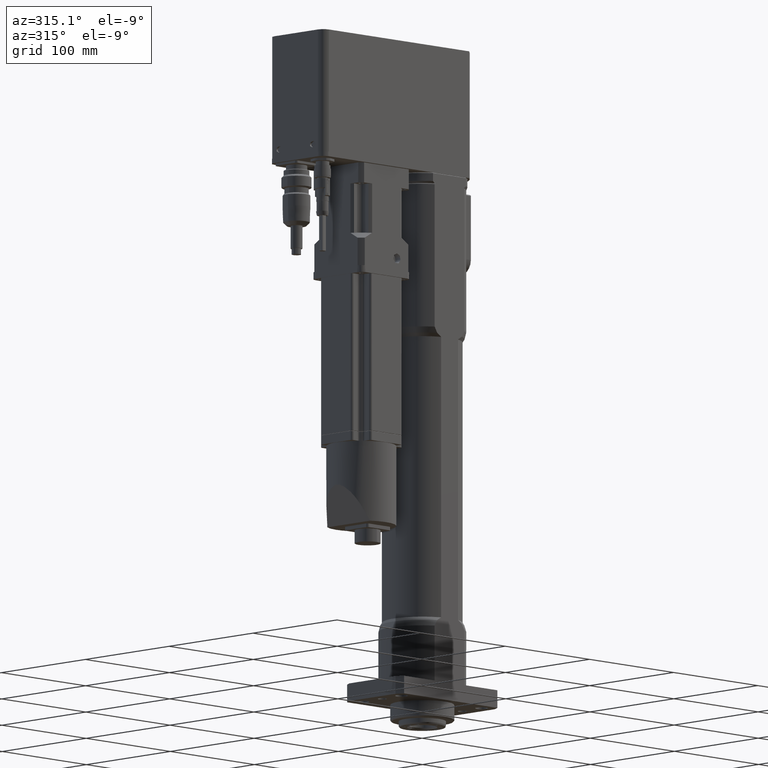
[diagram: clean part render]
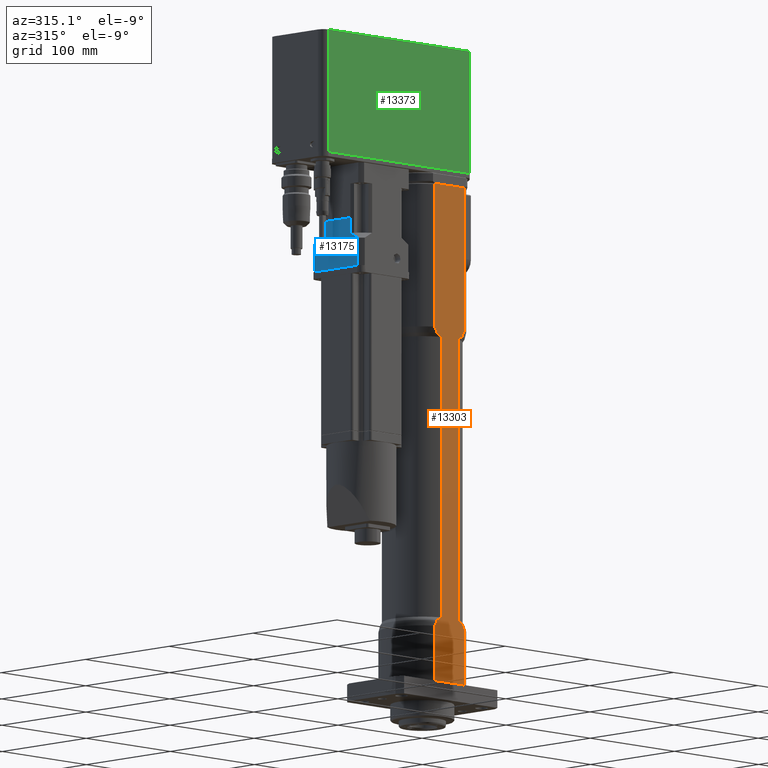
[diagram: same view with three faces highlighted in distinct colors, each labeled with its STEP entity id]
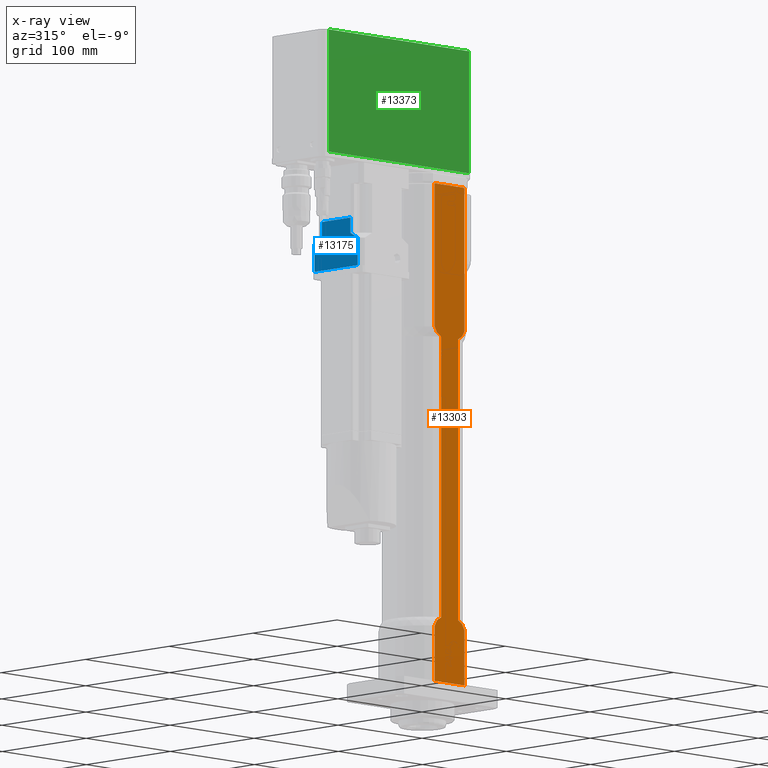
[diagram: x-ray of the same camera — body ghosted, the three highlighted faces saturated]
A machine part, auxiliary view with three faces highlighted in distinct colors.
The next image is the same camera in x-ray (body ghosted, the three faces saturated) — at least one of them is partly hidden behind the body in this view.
Their STEP definitions:

[orange] entity #13303 — the highlighted planar face has unit normal (-0, 1, 0).
#35=(
BOUNDED_CURVE()
B_SPLINE_CURVE(2,(#24307,#24308,#24309),.UNSPECIFIED.,.F.,.F.)
B_SPLINE_CURVE_WITH_KNOTS((3,3),(0.,0.576215523955919),.UNSPECIFIED.)
CURVE()
GEOMETRIC_REPRESENTATION_ITEM()
RATIONAL_B_SPLINE_CURVE((1.,1.00367307526795,1.00279504952126))
REPRESENTATION_ITEM('')
);
#36=(
BOUNDED_CURVE()
B_SPLINE_CURVE(2,(#24314,#24315,#24316),.UNSPECIFIED.,.F.,.F.)
B_SPLINE_CURVE_WITH_KNOTS((3,3),(0.353881603416723,0.930097127372635),
 .UNSPECIFIED.)
CURVE()
GEOMETRIC_REPRESENTATION_ITEM()
RATIONAL_B_SPLINE_CURVE((1.00279504952131,1.00367307526802,1.))
REPRESENTATION_ITEM('')
);
#38=(
BOUNDED_CURVE()
B_SPLINE_CURVE(2,(#24325,#24326,#24327),.UNSPECIFIED.,.F.,.F.)
B_SPLINE_CURVE_WITH_KNOTS((3,3),(0.353881603416707,0.930097127372629),
 .UNSPECIFIED.)
CURVE()
GEOMETRIC_REPRESENTATION_ITEM()
RATIONAL_B_SPLINE_CURVE((1.00279504952128,1.00367307526798,1.))
REPRESENTATION_ITEM('')
);
#41=(
BOUNDED_CURVE()
B_SPLINE_CURVE(2,(#24402,#24403,#24404),.UNSPECIFIED.,.F.,.F.)
B_SPLINE_CURVE_WITH_KNOTS((3,3),(0.,0.118242318995179),.UNSPECIFIED.)
CURVE()
GEOMETRIC_REPRESENTATION_ITEM()
RATIONAL_B_SPLINE_CURVE((1.,1.0001062776453,1.))
REPRESENTATION_ITEM('')
);
#43=(
BOUNDED_CURVE()
B_SPLINE_CURVE(2,(#24525,#24526,#24527),.UNSPECIFIED.,.F.,.F.)
B_SPLINE_CURVE_WITH_KNOTS((3,3),(0.,0.118242318995179),.UNSPECIFIED.)
CURVE()
GEOMETRIC_REPRESENTATION_ITEM()
RATIONAL_B_SPLINE_CURVE((1.,1.00010627764487,1.))
REPRESENTATION_ITEM('')
);
#47=(
BOUNDED_CURVE()
B_SPLINE_CURVE(2,(#24785,#24786,#24787),.UNSPECIFIED.,.F.,.F.)
B_SPLINE_CURVE_WITH_KNOTS((3,3),(0.,0.576215523955913),.UNSPECIFIED.)
CURVE()
GEOMETRIC_REPRESENTATION_ITEM()
RATIONAL_B_SPLINE_CURVE((1.,1.00367307526789,1.00279504952121))
REPRESENTATION_ITEM('')
);
#903=LINE('',#24246,#1838);
#907=LINE('',#24337,#1842);
#908=LINE('',#24344,#1843);
#913=LINE('',#24412,#1848);
#978=LINE('',#24752,#1913);
#979=LINE('',#24827,#1914);
#980=LINE('',#24829,#1915);
#981=LINE('',#24842,#1916);
#1838=VECTOR('',#17709,239.);
#1842=VECTOR('',#17735,239.);
#1843=VECTOR('',#17742,121.624355652982);
#1848=VECTOR('',#17757,35.3694783676547);
#1913=VECTOR('',#17994,121.624355652982);
#1914=VECTOR('',#18005,47.1243556529821);
#1915=VECTOR('',#18006,47.1243556529821);
#1916=VECTOR('',#18007,33.2264954516722);
#2271=B_SPLINE_CURVE_WITH_KNOTS('',3,(#24754,#24755,#24756,#24757,#24758,
#24759,#24760,#24761,#24762,#24763,#24764,#24765),.UNSPECIFIED.,.F.,.F.,
(4,2,2,2,2,4),(2.01667579410161,2.11019952768416,2.20372326126671,2.31927452154419,
2.43482578182166,2.58917653189829),.UNSPECIFIED.);
#2274=B_SPLINE_CURVE_WITH_KNOTS('',3,(#24801,#24802,#24803,#24804,#24805,
#24806,#24807,#24808,#24809,#24810,#24811,#24812),.UNSPECIFIED.,.F.,.F.,
(4,2,2,2,2,4),(5.47752664450818,5.6318773945848,5.74742865486227,5.86297991513974,
5.95650364872229,6.05002738230484),.UNSPECIFIED.);
#2275=B_SPLINE_CURVE_WITH_KNOTS('',3,(#24815,#24816,#24817,#24818,#24819,
#24820,#24821,#24822,#24823,#24824,#24825,#24826),.UNSPECIFIED.,.F.,.F.,
(4,2,2,2,2,4),(2.01667579410161,2.11019952768416,2.20372326126671,2.31927452154419,
2.43482578182166,2.58917653189829),.UNSPECIFIED.);
#2276=B_SPLINE_CURVE_WITH_KNOTS('',3,(#24830,#24831,#24832,#24833,#24834,
#24835,#24836,#24837,#24838,#24839,#24840,#24841),.UNSPECIFIED.,.F.,.F.,
(4,2,2,2,2,4),(5.47752664450817,5.6318773945848,5.74742865486227,5.86297991513975,
5.9565036487223,6.05002738230485),.UNSPECIFIED.);
#2574=PLANE('',#14632);
#3458=FACE_OUTER_BOUND('',#4391,.T.);
#4391=EDGE_LOOP('',(#10896,#10897,#10898,#10899,#10900,#10901,#10902,#10903,
#10904,#10905,#10906,#10907,#10908,#10909,#10910,#10911,#10912,#10913));
#6095=VERTEX_POINT('',#24243);
#6096=VERTEX_POINT('',#24245);
#6106=VERTEX_POINT('',#24302);
#6107=VERTEX_POINT('',#24311);
#6109=VERTEX_POINT('',#24321);
#6111=VERTEX_POINT('',#24324);
#6114=VERTEX_POINT('',#24336);
#6115=VERTEX_POINT('',#24340);
#6117=VERTEX_POINT('',#24343);
#6126=VERTEX_POINT('',#24401);
#6128=VERTEX_POINT('',#24409);
#6129=VERTEX_POINT('',#24411);
#6139=VERTEX_POINT('',#24522);
#6140=VERTEX_POINT('',#24524);
#6202=VERTEX_POINT('',#24749);
#6204=VERTEX_POINT('',#24780);
#6205=VERTEX_POINT('',#24814);
#6206=VERTEX_POINT('',#24828);
#7683=EDGE_CURVE('',#6095,#6096,#903,.T.);
#7695=EDGE_CURVE('',#6096,#6106,#35,.T.);
#7697=EDGE_CURVE('',#6107,#6095,#36,.T.);
#7700=EDGE_CURVE('',#6109,#6111,#38,.T.);
#7704=EDGE_CURVE('',#6111,#6114,#907,.T.);
#7707=EDGE_CURVE('',#6115,#6117,#908,.T.);
#7717=EDGE_CURVE('',#6117,#6126,#41,.T.);
#7721=EDGE_CURVE('',#6129,#6128,#913,.T.);
#7734=EDGE_CURVE('',#6139,#6140,#43,.T.);
#7829=EDGE_CURVE('',#6140,#6202,#978,.T.);
#7830=EDGE_CURVE('',#6202,#6107,#2271,.T.);
#7834=EDGE_CURVE('',#6114,#6204,#47,.T.);
#7836=EDGE_CURVE('',#6204,#6115,#2274,.T.);
#7837=EDGE_CURVE('',#6205,#6109,#2275,.T.);
#7838=EDGE_CURVE('',#6129,#6205,#979,.T.);
#7839=EDGE_CURVE('',#6206,#6128,#980,.T.);
#7840=EDGE_CURVE('',#6106,#6206,#2276,.T.);
#7841=EDGE_CURVE('',#6126,#6139,#981,.T.);
#10896=ORIENTED_EDGE('',*,*,#7837,.F.);
#10897=ORIENTED_EDGE('',*,*,#7838,.F.);
#10898=ORIENTED_EDGE('',*,*,#7721,.T.);
#10899=ORIENTED_EDGE('',*,*,#7839,.F.);
#10900=ORIENTED_EDGE('',*,*,#7840,.F.);
#10901=ORIENTED_EDGE('',*,*,#7695,.F.);
#10902=ORIENTED_EDGE('',*,*,#7683,.F.);
#10903=ORIENTED_EDGE('',*,*,#7697,.F.);
#10904=ORIENTED_EDGE('',*,*,#7830,.F.);
#10905=ORIENTED_EDGE('',*,*,#7829,.F.);
#10906=ORIENTED_EDGE('',*,*,#7734,.F.);
#10907=ORIENTED_EDGE('',*,*,#7841,.F.);
#10908=ORIENTED_EDGE('',*,*,#7717,.F.);
#10909=ORIENTED_EDGE('',*,*,#7707,.F.);
#10910=ORIENTED_EDGE('',*,*,#7836,.F.);
#10911=ORIENTED_EDGE('',*,*,#7834,.F.);
#10912=ORIENTED_EDGE('',*,*,#7704,.F.);
#10913=ORIENTED_EDGE('',*,*,#7700,.F.);
#13303=ADVANCED_FACE('',(#3458),#2574,.F.);
#14632=AXIS2_PLACEMENT_3D('',#24813,#18003,#18004);
#17709=DIRECTION('',(0.,0.,-1.));
#17735=DIRECTION('',(0.,0.,1.));
#17742=DIRECTION('',(0.,0.,1.));
#17757=DIRECTION('',(1.,3.7667155158515E-16,0.));
#17994=DIRECTION('',(0.,0.,-1.));
#18003=DIRECTION('center_axis',(-3.7667155158515E-16,1.,0.));
#18004=DIRECTION('ref_axis',(1.,7.105427357601E-16,0.));
#18005=DIRECTION('',(0.,0.,1.));
#18006=DIRECTION('',(0.,0.,-1.));
#18007=DIRECTION('',(1.,3.7667155158515E-16,0.));
#24243=CARTESIAN_POINT('',(9.98749217771903,-32.5,323.));
#24245=CARTESIAN_POINT('',(9.98749217771903,-32.5,84.));
#24246=CARTESIAN_POINT('',(9.98749217771903,-32.5,84.));
#24302=CARTESIAN_POINT('',(14.6766385130791,-32.5,81.1243556529821));
#24307=CARTESIAN_POINT('Ctrl Pts',(9.98749217771909,-32.5,84.));
#24308=CARTESIAN_POINT('Ctrl Pts',(12.2761857463016,-32.5,82.8355366835427));
#24309=CARTESIAN_POINT('Ctrl Pts',(14.6766385130791,-32.5,81.1243556529821));
#24311=CARTESIAN_POINT('',(14.676638513079,-32.5,325.875644347018));
#24314=CARTESIAN_POINT('Ctrl Pts',(14.676638513079,-32.5,325.875644347018));
#24315=CARTESIAN_POINT('Ctrl Pts',(12.2761857463017,-32.5,324.164463316457));
#24316=CARTESIAN_POINT('Ctrl Pts',(9.98749217771903,-32.5,323.));
#24321=CARTESIAN_POINT('',(-14.6766385130791,-32.5,81.1243556529821));
#24324=CARTESIAN_POINT('',(-9.98749217771901,-32.5,84.));
#24325=CARTESIAN_POINT('Ctrl Pts',(-14.6766385130791,-32.5,81.1243556529821));
#24326=CARTESIAN_POINT('Ctrl Pts',(-12.2761857463017,-32.5,82.8355366835427));
#24327=CARTESIAN_POINT('Ctrl Pts',(-9.98749217771906,-32.5,84.));
#24336=CARTESIAN_POINT('',(-9.98749217771901,-32.5,323.));
#24337=CARTESIAN_POINT('',(-9.98749217771901,-32.5,84.));
#24340=CARTESIAN_POINT('',(-17.6847391838273,-32.5,330.875644347018));
#24343=CARTESIAN_POINT('',(-17.6847391838273,-32.5,452.5));
#24344=CARTESIAN_POINT('',(-17.6847391838273,-32.5,323.));
#24401=CARTESIAN_POINT('',(-16.6132477258361,-32.5,453.));
#24402=CARTESIAN_POINT('Ctrl Pts',(-17.6847391838273,-32.5,452.5));
#24403=CARTESIAN_POINT('Ctrl Pts',(-17.1453489260635,-32.5,452.757810162888));
#24404=CARTESIAN_POINT('Ctrl Pts',(-16.6132477258361,-32.5,453.));
#24409=CARTESIAN_POINT('',(17.6847391838273,-32.5,29.));
#24411=CARTESIAN_POINT('',(-17.6847391838273,-32.5,29.));
#24412=CARTESIAN_POINT('',(-8.84236959191366,-32.5,29.));
#24522=CARTESIAN_POINT('',(16.6132477258361,-32.5,453.));
#24524=CARTESIAN_POINT('',(17.6847391838273,-32.5,452.5));
#24525=CARTESIAN_POINT('Ctrl Pts',(16.6132477258361,-32.5,453.));
#24526=CARTESIAN_POINT('Ctrl Pts',(17.1453489260635,-32.5,452.757810162888));
#24527=CARTESIAN_POINT('Ctrl Pts',(17.6847391838274,-32.5,452.5));
#24749=CARTESIAN_POINT('',(17.6847391838274,-32.5,330.875644347018));
#24752=CARTESIAN_POINT('',(17.6847391838274,-32.5,323.));
#24754=CARTESIAN_POINT('Ctrl Pts',(17.6847391838274,-32.5,330.875644347018));
#24755=CARTESIAN_POINT('Ctrl Pts',(17.6847391838274,-32.5,330.563898568409));
#24756=CARTESIAN_POINT('Ctrl Pts',(17.6520388109704,-32.5,330.22378033379));
#24757=CARTESIAN_POINT('Ctrl Pts',(17.5136642759605,-32.5,329.558297565693));
#24758=CARTESIAN_POINT('Ctrl Pts',(17.4082522420596,-32.5,329.232878554539));
#24759=CARTESIAN_POINT('Ctrl Pts',(17.1389797491901,-32.5,328.590083768986));
#24760=CARTESIAN_POINT('Ctrl Pts',(16.9367000043007,-32.5,328.219940833598));
#24761=CARTESIAN_POINT('Ctrl Pts',(16.4600383226333,-32.5,327.527725706132));
#24762=CARTESIAN_POINT('Ctrl Pts',(16.1863206548294,-32.5,327.205196331039));
#24763=CARTESIAN_POINT('Ctrl Pts',(15.5578029830018,-32.5,326.561474570482));
#24764=CARTESIAN_POINT('Ctrl Pts',(15.1333436641394,-32.5,326.20121009106));
#24765=CARTESIAN_POINT('Ctrl Pts',(14.676638513079,-32.5,325.875644347018));
#24780=CARTESIAN_POINT('',(-14.6766385130791,-32.5,325.875644347018));
#24785=CARTESIAN_POINT('Ctrl Pts',(-9.98749217771901,-32.5,323.));
#24786=CARTESIAN_POINT('Ctrl Pts',(-12.2761857463015,-32.5,324.164463316457));
#24787=CARTESIAN_POINT('Ctrl Pts',(-14.6766385130791,-32.5,325.875644347018));
#24801=CARTESIAN_POINT('Ctrl Pts',(-14.676638513079,-32.5,325.875644347018));
#24802=CARTESIAN_POINT('Ctrl Pts',(-15.1333436641394,-32.5,326.20121009106));
#24803=CARTESIAN_POINT('Ctrl Pts',(-15.5578029830018,-32.5,326.561474570482));
#24804=CARTESIAN_POINT('Ctrl Pts',(-16.1863206548294,-32.5,327.205196331039));
#24805=CARTESIAN_POINT('Ctrl Pts',(-16.4600383226334,-32.5,327.527725706132));
#24806=CARTESIAN_POINT('Ctrl Pts',(-16.9367000043007,-32.5,328.219940833598));
#24807=CARTESIAN_POINT('Ctrl Pts',(-17.1389797491901,-32.5,328.590083768986));
#24808=CARTESIAN_POINT('Ctrl Pts',(-17.4082522420596,-32.5,329.232878554539));
#24809=CARTESIAN_POINT('Ctrl Pts',(-17.5136642759605,-32.5,329.558297565693));
#24810=CARTESIAN_POINT('Ctrl Pts',(-17.6520388109704,-32.5,330.22378033379));
#24811=CARTESIAN_POINT('Ctrl Pts',(-17.6847391838273,-32.5,330.563898568409));
#24812=CARTESIAN_POINT('Ctrl Pts',(-17.6847391838273,-32.5,330.875644347018));
#24813=CARTESIAN_POINT('Origin',(-17.6847391838273,-32.5,453.));
#24814=CARTESIAN_POINT('',(-17.6847391838274,-32.5,76.1243556529821));
#24815=CARTESIAN_POINT('Ctrl Pts',(-17.6847391838274,-32.5,76.1243556529821));
#24816=CARTESIAN_POINT('Ctrl Pts',(-17.6847391838274,-32.5,76.4361014315906));
#24817=CARTESIAN_POINT('Ctrl Pts',(-17.6520388109704,-32.5,76.7762196662102));
#24818=CARTESIAN_POINT('Ctrl Pts',(-17.5136642759605,-32.5,77.4417024343069));
#24819=CARTESIAN_POINT('Ctrl Pts',(-17.4082522420596,-32.5,77.7671214454609));
#24820=CARTESIAN_POINT('Ctrl Pts',(-17.1389797491901,-32.5,78.4099162310142));
#24821=CARTESIAN_POINT('Ctrl Pts',(-16.9367000043008,-32.5,78.780059166402));
#24822=CARTESIAN_POINT('Ctrl Pts',(-16.4600383226334,-32.5,79.4722742938682));
#24823=CARTESIAN_POINT('Ctrl Pts',(-16.1863206548294,-32.5,79.7948036689614));
#24824=CARTESIAN_POINT('Ctrl Pts',(-15.5578029830018,-32.5,80.4385254295176));
#24825=CARTESIAN_POINT('Ctrl Pts',(-15.1333436641395,-32.5,80.79878990894));
#24826=CARTESIAN_POINT('Ctrl Pts',(-14.6766385130791,-32.5,81.1243556529821));
#24827=CARTESIAN_POINT('',(-17.6847391838274,-32.5,29.));
#24828=CARTESIAN_POINT('',(17.6847391838274,-32.5,76.1243556529821));
#24829=CARTESIAN_POINT('',(17.6847391838274,-32.5,29.));
#24830=CARTESIAN_POINT('Ctrl Pts',(14.6766385130791,-32.5,81.1243556529821));
#24831=CARTESIAN_POINT('Ctrl Pts',(15.1333436641395,-32.5,80.79878990894));
#24832=CARTESIAN_POINT('Ctrl Pts',(15.5578029830018,-32.5,80.4385254295176));
#24833=CARTESIAN_POINT('Ctrl Pts',(16.1863206548294,-32.5,79.7948036689615));
#24834=CARTESIAN_POINT('Ctrl Pts',(16.4600383226334,-32.5,79.4722742938682));
#24835=CARTESIAN_POINT('Ctrl Pts',(16.9367000043008,-32.5,78.780059166402));
#24836=CARTESIAN_POINT('Ctrl Pts',(17.1389797491901,-32.5,78.4099162310142));
#24837=CARTESIAN_POINT('Ctrl Pts',(17.4082522420596,-32.5,77.7671214454609));
#24838=CARTESIAN_POINT('Ctrl Pts',(17.5136642759605,-32.5,77.4417024343069));
#24839=CARTESIAN_POINT('Ctrl Pts',(17.6520388109705,-32.5,76.7762196662102));
#24840=CARTESIAN_POINT('Ctrl Pts',(17.6847391838274,-32.5,76.4361014315906));
#24841=CARTESIAN_POINT('Ctrl Pts',(17.6847391838274,-32.5,76.1243556529821));
#24842=CARTESIAN_POINT('',(-8.84236959191367,-32.5,453.));

[blue] entity #13175 — the highlighted planar face has unit normal (-1, 0, -0).
#31=(
BOUNDED_CURVE()
B_SPLINE_CURVE(2,(#23784,#23785,#23786),.UNSPECIFIED.,.F.,.F.)
B_SPLINE_CURVE_WITH_KNOTS((3,3),(-10.6524120970008,-9.4942813080497),
 .UNSPECIFIED.)
CURVE()
GEOMETRIC_REPRESENTATION_ITEM()
RATIONAL_B_SPLINE_CURVE((1.35251798561204,1.41367336988718,1.45736434108529))
REPRESENTATION_ITEM('')
);
#32=(
BOUNDED_CURVE()
B_SPLINE_CURVE(2,(#23792,#23793,#23794),.UNSPECIFIED.,.F.,.F.)
B_SPLINE_CURVE_WITH_KNOTS((3,3),(-3.69965669392681,-2.54152590497577),
 .UNSPECIFIED.)
CURVE()
GEOMETRIC_REPRESENTATION_ITEM()
RATIONAL_B_SPLINE_CURVE((1.45736434108529,1.41367336988718,1.35251798561204))
REPRESENTATION_ITEM('')
);
#767=LINE('',#23660,#1702);
#773=LINE('',#23701,#1708);
#780=LINE('',#23728,#1715);
#810=LINE('',#23895,#1745);
#811=LINE('',#23898,#1746);
#812=LINE('',#23900,#1747);
#813=LINE('',#23901,#1748);
#814=LINE('',#23902,#1749);
#1702=VECTOR('',#17133,50.);
#1708=VECTOR('',#17187,0.695330315059977);
#1715=VECTOR('',#17220,0.695330315060029);
#1745=VECTOR('',#17374,13.);
#1746=VECTOR('',#17379,23.5);
#1747=VECTOR('',#17380,13.);
#1748=VECTOR('',#17381,34.0734500748);
#1749=VECTOR('',#17382,23.5);
#2516=PLANE('',#14403);
#3330=FACE_OUTER_BOUND('',#4219,.T.);
#4219=EDGE_LOOP('',(#10316,#10317,#10318,#10319,#10320,#10321,#10322,#10323,
#10324,#10325));
#5926=VERTEX_POINT('',#23653);
#5927=VERTEX_POINT('',#23658);
#5938=VERTEX_POINT('',#23699);
#5945=VERTEX_POINT('',#23727);
#5961=VERTEX_POINT('',#23772);
#5965=VERTEX_POINT('',#23782);
#5966=VERTEX_POINT('',#23788);
#5968=VERTEX_POINT('',#23791);
#5996=VERTEX_POINT('',#23894);
#5997=VERTEX_POINT('',#23899);
#7431=EDGE_CURVE('',#5927,#5926,#767,.T.);
#7449=EDGE_CURVE('',#5938,#5927,#773,.T.);
#7462=EDGE_CURVE('',#5926,#5945,#780,.T.);
#7484=EDGE_CURVE('',#5961,#5965,#31,.T.);
#7486=EDGE_CURVE('',#5968,#5966,#32,.T.);
#7532=EDGE_CURVE('',#5996,#5968,#810,.T.);
#7534=EDGE_CURVE('',#5961,#5938,#811,.T.);
#7535=EDGE_CURVE('',#5997,#5965,#812,.T.);
#7536=EDGE_CURVE('',#5997,#5996,#813,.T.);
#7537=EDGE_CURVE('',#5966,#5945,#814,.T.);
#10316=ORIENTED_EDGE('',*,*,#7449,.F.);
#10317=ORIENTED_EDGE('',*,*,#7534,.F.);
#10318=ORIENTED_EDGE('',*,*,#7484,.T.);
#10319=ORIENTED_EDGE('',*,*,#7535,.F.);
#10320=ORIENTED_EDGE('',*,*,#7536,.T.);
#10321=ORIENTED_EDGE('',*,*,#7532,.T.);
#10322=ORIENTED_EDGE('',*,*,#7486,.T.);
#10323=ORIENTED_EDGE('',*,*,#7537,.T.);
#10324=ORIENTED_EDGE('',*,*,#7462,.F.);
#10325=ORIENTED_EDGE('',*,*,#7431,.F.);
#13175=ADVANCED_FACE('',(#3330),#2516,.T.);
#14403=AXIS2_PLACEMENT_3D('',#23897,#17377,#17378);
#17133=DIRECTION('',(1.70828439083748E-15,1.,1.36818063249271E-30));
#17187=DIRECTION('',(1.70828439083748E-15,1.,1.36818063249271E-30));
#17220=DIRECTION('',(1.70828439083748E-15,1.,1.36818063249271E-30));
#17374=DIRECTION('',(6.12864908203916E-16,3.94430452610506E-31,-1.));
#17377=DIRECTION('center_axis',(-1.,1.70828439083748E-15,-6.12864908203916E-16));
#17378=DIRECTION('ref_axis',(0.,1.,0.));
#17379=DIRECTION('',(6.12864908203916E-16,3.94430452610506E-31,-1.));
#17380=DIRECTION('',(6.12864908203916E-16,3.94430452610506E-31,-1.));
#17381=DIRECTION('',(1.67849944170064E-16,1.,5.35388693659386E-31));
#17382=DIRECTION('',(6.12864908203916E-16,3.94430452610506E-31,-1.));
#23653=CARTESIAN_POINT('',(-102.5,25.0000000000001,374.500000000001));
#23658=CARTESIAN_POINT('',(-102.5,-24.9999999999999,374.500000000001));
#23660=CARTESIAN_POINT('',(-102.5,-25.6953303150599,374.5));
#23699=CARTESIAN_POINT('',(-102.5,-25.6953303150599,374.5));
#23701=CARTESIAN_POINT('',(-102.5,-25.6953303150599,374.5));
#23727=CARTESIAN_POINT('',(-102.5,25.6953303150601,374.5));
#23728=CARTESIAN_POINT('',(-102.5,-25.6953303150599,374.5));
#23772=CARTESIAN_POINT('',(-102.5,-25.6953303150599,398.));
#23782=CARTESIAN_POINT('',(-102.5,-17.0367250373999,403.));
#23784=CARTESIAN_POINT('Ctrl Pts',(-102.5,-25.6953303150174,398.000000000028));
#23785=CARTESIAN_POINT('Ctrl Pts',(-102.5,-21.0735072276415,401.006563819971));
#23786=CARTESIAN_POINT('Ctrl Pts',(-102.5,-17.036725037399,403.000000000001));
#23788=CARTESIAN_POINT('',(-102.5,25.6953303150601,398.));
#23791=CARTESIAN_POINT('',(-102.5,17.0367250374001,403.));
#23792=CARTESIAN_POINT('Ctrl Pts',(-102.5,17.0367250373992,403.000000000001));
#23793=CARTESIAN_POINT('Ctrl Pts',(-102.5,21.0735072276416,401.006563819971));
#23794=CARTESIAN_POINT('Ctrl Pts',(-102.5,25.6953303150175,398.000000000028));
#23894=CARTESIAN_POINT('',(-102.5,17.0367250374,416.));
#23895=CARTESIAN_POINT('',(-102.5,17.0367250374001,416.));
#23897=CARTESIAN_POINT('Origin',(-102.5,-17.0367250373999,416.));
#23898=CARTESIAN_POINT('',(-102.5,-25.6953303150599,398.));
#23899=CARTESIAN_POINT('',(-102.5,-17.0367250374,416.));
#23900=CARTESIAN_POINT('',(-102.5,-17.0367250373999,416.));
#23901=CARTESIAN_POINT('',(-102.5,-17.0367250374,416.));
#23902=CARTESIAN_POINT('',(-102.5,25.6953303150601,398.));

[green] entity #13373 — the highlighted planar face has unit normal (0, -1, 0).
#865=LINE('',#24045,#1800);
#1052=LINE('',#25157,#1987);
#1061=LINE('',#25183,#1996);
#1062=LINE('',#25185,#1997);
#1800=VECTOR('',#17531,166.718447632722);
#1987=VECTOR('',#18288,166.718447632722);
#1996=VECTOR('',#18315,104.);
#1997=VECTOR('',#18318,104.);
#2608=PLANE('',#14747);
#3528=FACE_OUTER_BOUND('',#4472,.T.);
#4472=EDGE_LOOP('',(#11269,#11270,#11271,#11272));
#6039=VERTEX_POINT('',#24042);
#6040=VERTEX_POINT('',#24044);
#6276=VERTEX_POINT('',#25154);
#6277=VERTEX_POINT('',#25156);
#7604=EDGE_CURVE('',#6040,#6039,#865,.T.);
#7967=EDGE_CURVE('',#6276,#6277,#1052,.T.);
#7981=EDGE_CURVE('',#6040,#6276,#1061,.T.);
#7982=EDGE_CURVE('',#6039,#6277,#1062,.T.);
#11269=ORIENTED_EDGE('',*,*,#7604,.T.);
#11270=ORIENTED_EDGE('',*,*,#7982,.T.);
#11271=ORIENTED_EDGE('',*,*,#7967,.F.);
#11272=ORIENTED_EDGE('',*,*,#7981,.F.);
#13373=ADVANCED_FACE('',(#3528),#2608,.T.);
#14747=AXIS2_PLACEMENT_3D('',#25184,#18316,#18317);
#17531=DIRECTION('',(1.,0.,0.));
#18288=DIRECTION('',(1.,3.7667155158515E-16,0.));
#18315=DIRECTION('',(0.,0.,1.));
#18316=DIRECTION('center_axis',(3.7667155158515E-16,-1.,0.));
#18317=DIRECTION('ref_axis',(1.,7.105427357601E-16,0.));
#18318=DIRECTION('',(0.,0.,1.));
#24042=CARTESIAN_POINT('',(23.318447632722,-32.5,466.));
#24044=CARTESIAN_POINT('',(-143.4,-32.5000000000001,466.));
#24045=CARTESIAN_POINT('',(-144.,-32.5,466.));
#25154=CARTESIAN_POINT('',(-143.4,-32.5000000000001,570.));
#25156=CARTESIAN_POINT('',(23.3184476327221,-32.5,570.));
#25157=CARTESIAN_POINT('',(-143.4,-32.5000000000001,570.));
#25183=CARTESIAN_POINT('',(-143.4,-32.5000000000001,466.));
#25184=CARTESIAN_POINT('Origin',(-143.4,-32.5000000000001,466.));
#25185=CARTESIAN_POINT('',(23.3184476327221,-32.5,466.));